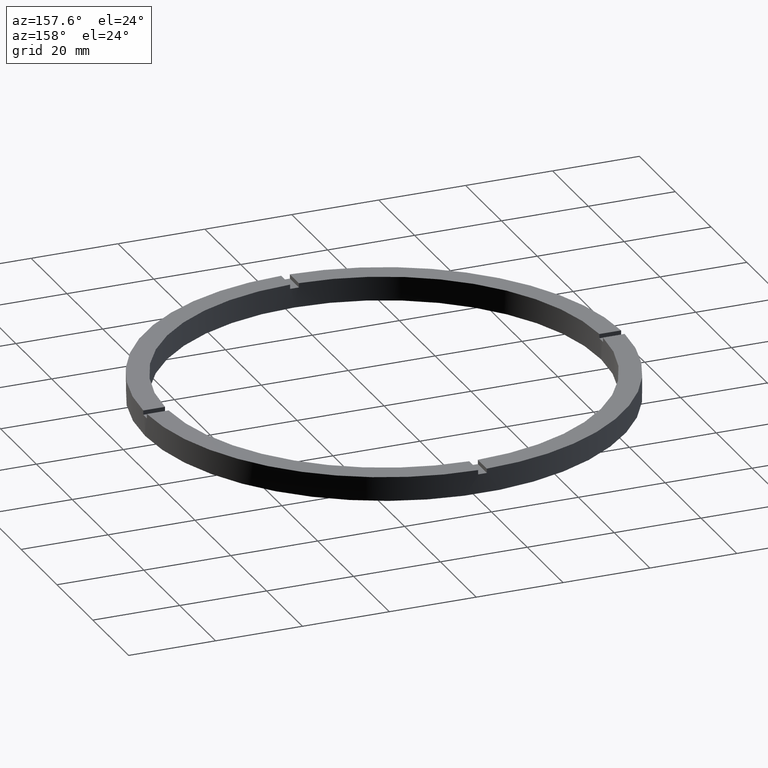
[diagram: clean part render]
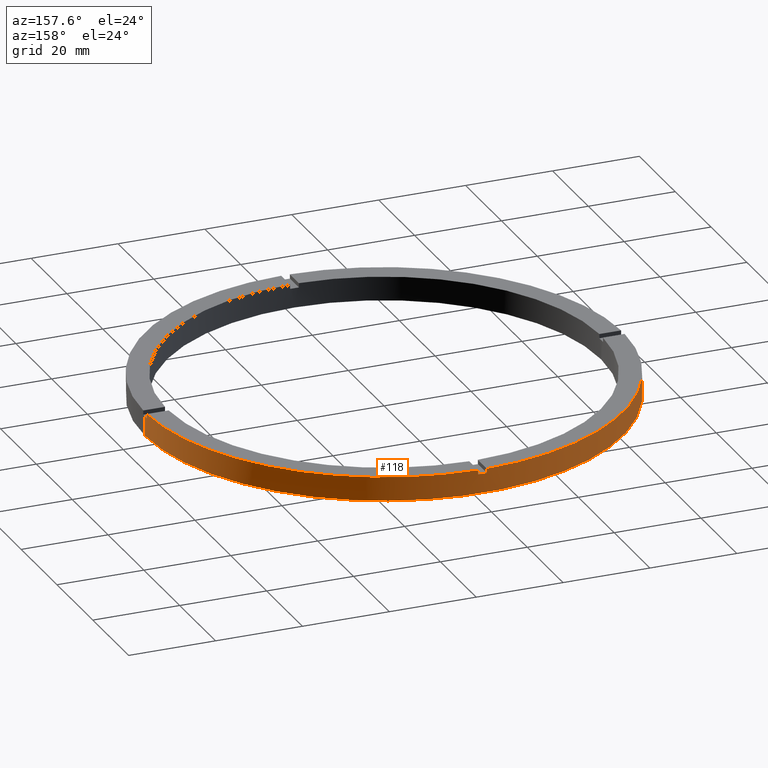
[diagram: same view with one face highlighted and labeled with its STEP entity id]
A machine part, auxiliary view. The second image highlights one B-rep face of the part: STEP entity #118.
In plain terms, the highlighted cylindrical surface (partial cylindrical patch) has radius 55 mm, axis along (-0, -0, -1).
Its self-contained STEP definition (entity closure, byte-faithful):
#1 = CARTESIAN_POINT ( 'NONE',  ( 0.9999999999999726885, 54.99090833947007440, 5.500000000000000000 ) ) ;
#3 = VECTOR ( 'NONE', #651, 1000.000000000000000 ) ;
#5 = EDGE_CURVE ( 'NONE', #661, #153, #187, .T. ) ;
#8 = LINE ( 'NONE', #555, #3 ) ;
#17 = DIRECTION ( 'NONE',  ( 0.000000000000000000, 0.000000000000000000, 1.000000000000000000 ) ) ;
#18 = CARTESIAN_POINT ( 'NONE',  ( 55.00000000000000000, 6.735557395310442615E-15, 5.500000000000000000 ) ) ;
#22 = EDGE_CURVE ( 'NONE', #711, #626, #473, .T. ) ;
#24 = DIRECTION ( 'NONE',  ( 1.000000000000000000, 0.000000000000000000, 0.000000000000000000 ) ) ;
#29 = CARTESIAN_POINT ( 'NONE',  ( 0.000000000000000000, 0.000000000000000000, 0.000000000000000000 ) ) ;
#34 = DIRECTION ( 'NONE',  ( 1.000000000000000000, 0.000000000000000000, 0.000000000000000000 ) ) ;
#45 = VERTEX_POINT ( 'NONE', #406 ) ;
#51 = VERTEX_POINT ( 'NONE', #1 ) ;
#53 = AXIS2_PLACEMENT_3D ( 'NONE', #130, #543, #266 ) ;
#65 = DIRECTION ( 'NONE',  ( 0.000000000000000000, 0.000000000000000000, 1.000000000000000000 ) ) ;
#68 = EDGE_CURVE ( 'NONE', #213, #51, #706, .T. ) ;
#73 = DIRECTION ( 'NONE',  ( -0.000000000000000000, -0.000000000000000000, -1.000000000000000000 ) ) ;
#88 = CARTESIAN_POINT ( 'NONE',  ( -54.99090833947007440, 0.9999999999999672484, 5.500000000000000000 ) ) ;
#93 = DIRECTION ( 'NONE',  ( -0.000000000000000000, -0.000000000000000000, -1.000000000000000000 ) ) ;
#104 = EDGE_CURVE ( 'NONE', #45, #408, #219, .T. ) ;
#107 = CARTESIAN_POINT ( 'NONE',  ( -1.000000000000027311, 54.99090833947007440, 5.500000000000000000 ) ) ;
#108 = ORIENTED_EDGE ( 'NONE', *, *, #148, .T. ) ;
#111 = EDGE_CURVE ( 'NONE', #442, #408, #716, .T. ) ;
#114 = ORIENTED_EDGE ( 'NONE', *, *, #600, .F. ) ;
#116 = VERTEX_POINT ( 'NONE', #158 ) ;
#118 = ADVANCED_FACE ( 'NONE', ( #720 ), #468, .T. ) ;
#130 = CARTESIAN_POINT ( 'NONE',  ( 0.000000000000000000, 0.000000000000000000, 4.500000000000000000 ) ) ;
#148 = EDGE_CURVE ( 'NONE', #442, #161, #727, .T. ) ;
#153 = VERTEX_POINT ( 'NONE', #366 ) ;
#158 = CARTESIAN_POINT ( 'NONE',  ( 0.9999999999999726885, 54.99090833947007440, 4.500000000000000000 ) ) ;
#161 = VERTEX_POINT ( 'NONE', #743 ) ;
#170 = CARTESIAN_POINT ( 'NONE',  ( 0.000000000000000000, 0.000000000000000000, 4.500000000000000000 ) ) ;
#182 = VECTOR ( 'NONE', #312, 1000.000000000000000 ) ;
#187 = LINE ( 'NONE', #599, #695 ) ;
#189 = CIRCLE ( 'NONE', #470, 55.00000000000000000 ) ;
#193 = CARTESIAN_POINT ( 'NONE',  ( -55.00000000000000000, 0.000000000000000000, 4.500000000000000000 ) ) ;
#198 = EDGE_CURVE ( 'NONE', #626, #153, #189, .T. ) ;
#213 = VERTEX_POINT ( 'NONE', #446 ) ;
#217 = VECTOR ( 'NONE', #571, 1000.000000000000000 ) ;
#219 = LINE ( 'NONE', #759, #463 ) ;
#220 = ORIENTED_EDGE ( 'NONE', *, *, #732, .F. ) ;
#221 = DIRECTION ( 'NONE',  ( -1.000000000000000000, 0.000000000000000000, 0.000000000000000000 ) ) ;
#256 = CIRCLE ( 'NONE', #260, 55.00000000000000000 ) ;
#257 = CIRCLE ( 'NONE', #593, 55.00000000000000000 ) ;
#260 = AXIS2_PLACEMENT_3D ( 'NONE', #642, #17, #498 ) ;
#266 = DIRECTION ( 'NONE',  ( 1.000000000000000000, 0.000000000000000000, 0.000000000000000000 ) ) ;
#274 = AXIS2_PLACEMENT_3D ( 'NONE', #531, #471, #34 ) ;
#312 = DIRECTION ( 'NONE',  ( -0.000000000000000000, -0.000000000000000000, -1.000000000000000000 ) ) ;
#341 = CARTESIAN_POINT ( 'NONE',  ( 0.000000000000000000, 0.000000000000000000, 5.500000000000000000 ) ) ;
#353 = EDGE_CURVE ( 'NONE', #116, #51, #770, .T. ) ;
#360 = DIRECTION ( 'NONE',  ( 0.000000000000000000, 0.000000000000000000, 1.000000000000000000 ) ) ;
#366 = CARTESIAN_POINT ( 'NONE',  ( -55.00000000000000000, 0.000000000000000000, 0.000000000000000000 ) ) ;
#367 = CARTESIAN_POINT ( 'NONE',  ( 55.00000000000000000, 6.735557395310442615E-15, 4.500000000000000000 ) ) ;
#369 = DIRECTION ( 'NONE',  ( 0.000000000000000000, 0.000000000000000000, 1.000000000000000000 ) ) ;
#370 = CARTESIAN_POINT ( 'NONE',  ( 54.99090833947008150, 0.9999999999998459010, 4.500000000000000000 ) ) ;
#376 = ORIENTED_EDGE ( 'NONE', *, *, #111, .F. ) ;
#381 = CARTESIAN_POINT ( 'NONE',  ( 0.9999999999999726885, 54.99090833947007440, 5.500000000000000000 ) ) ;
#384 = DIRECTION ( 'NONE',  ( 0.000000000000000000, 0.000000000000000000, 1.000000000000000000 ) ) ;
#386 = ORIENTED_EDGE ( 'NONE', *, *, #22, .T. ) ;
#390 = AXIS2_PLACEMENT_3D ( 'NONE', #341, #93, #221 ) ;
#391 = EDGE_LOOP ( 'NONE', ( #114, #386, #405, #475, #722, #652, #376, #108, #220, #394, #680, #395 ) ) ;
#392 = CARTESIAN_POINT ( 'NONE',  ( 0.000000000000000000, 0.000000000000000000, 5.500000000000000000 ) ) ;
#394 = ORIENTED_EDGE ( 'NONE', *, *, #353, .T. ) ;
#395 = ORIENTED_EDGE ( 'NONE', *, *, #678, .T. ) ;
#405 = ORIENTED_EDGE ( 'NONE', *, *, #198, .T. ) ;
#406 = CARTESIAN_POINT ( 'NONE',  ( -54.99090833947007440, 0.9999999999999672484, 4.500000000000000000 ) ) ;
#408 = VERTEX_POINT ( 'NONE', #88 ) ;
#442 = VERTEX_POINT ( 'NONE', #537 ) ;
#444 = DIRECTION ( 'NONE',  ( 1.000000000000000000, 0.000000000000000000, 0.000000000000000000 ) ) ;
#446 = CARTESIAN_POINT ( 'NONE',  ( 54.99090833947008150, 0.9999999999998459010, 5.500000000000000000 ) ) ;
#463 = VECTOR ( 'NONE', #694, 1000.000000000000000 ) ;
#468 = CYLINDRICAL_SURFACE ( 'NONE', #390, 55.00000000000000000 ) ;
#470 = AXIS2_PLACEMENT_3D ( 'NONE', #29, #369, #24 ) ;
#471 = DIRECTION ( 'NONE',  ( 0.000000000000000000, 0.000000000000000000, 1.000000000000000000 ) ) ;
#473 = LINE ( 'NONE', #18, #182 ) ;
#475 = ORIENTED_EDGE ( 'NONE', *, *, #5, .F. ) ;
#495 = VECTOR ( 'NONE', #360, 1000.000000000000000 ) ;
#498 = DIRECTION ( 'NONE',  ( 1.000000000000000000, 0.000000000000000000, 0.000000000000000000 ) ) ;
#523 = CIRCLE ( 'NONE', #53, 55.00000000000000000 ) ;
#531 = CARTESIAN_POINT ( 'NONE',  ( 0.000000000000000000, 0.000000000000000000, 5.500000000000000000 ) ) ;
#532 = CARTESIAN_POINT ( 'NONE',  ( 55.00000000000000000, 6.735557395310442615E-15, 0.000000000000000000 ) ) ;
#537 = CARTESIAN_POINT ( 'NONE',  ( -1.000000000000027311, 54.99090833947007440, 5.500000000000000000 ) ) ;
#543 = DIRECTION ( 'NONE',  ( 0.000000000000000000, -0.000000000000000000, 1.000000000000000000 ) ) ;
#548 = EDGE_CURVE ( 'NONE', #45, #661, #256, .T. ) ;
#555 = CARTESIAN_POINT ( 'NONE',  ( 54.99090833947008150, 0.9999999999998459010, 5.500000000000000000 ) ) ;
#571 = DIRECTION ( 'NONE',  ( -0.000000000000000000, -0.000000000000000000, -1.000000000000000000 ) ) ;
#593 = AXIS2_PLACEMENT_3D ( 'NONE', #170, #65, #621 ) ;
#599 = CARTESIAN_POINT ( 'NONE',  ( -55.00000000000000000, 0.000000000000000000, 5.500000000000000000 ) ) ;
#600 = EDGE_CURVE ( 'NONE', #711, #647, #257, .T. ) ;
#621 = DIRECTION ( 'NONE',  ( 1.000000000000000000, 0.000000000000000000, 0.000000000000000000 ) ) ;
#626 = VERTEX_POINT ( 'NONE', #532 ) ;
#642 = CARTESIAN_POINT ( 'NONE',  ( 0.000000000000000000, 0.000000000000000000, 4.500000000000000000 ) ) ;
#647 = VERTEX_POINT ( 'NONE', #370 ) ;
#651 = DIRECTION ( 'NONE',  ( -0.000000000000000000, -0.000000000000000000, -1.000000000000000000 ) ) ;
#652 = ORIENTED_EDGE ( 'NONE', *, *, #104, .T. ) ;
#661 = VERTEX_POINT ( 'NONE', #193 ) ;
#678 = EDGE_CURVE ( 'NONE', #213, #647, #8, .T. ) ;
#680 = ORIENTED_EDGE ( 'NONE', *, *, #68, .F. ) ;
#694 = DIRECTION ( 'NONE',  ( 0.000000000000000000, 0.000000000000000000, 1.000000000000000000 ) ) ;
#695 = VECTOR ( 'NONE', #73, 1000.000000000000000 ) ;
#706 = CIRCLE ( 'NONE', #713, 55.00000000000000000 ) ;
#711 = VERTEX_POINT ( 'NONE', #367 ) ;
#713 = AXIS2_PLACEMENT_3D ( 'NONE', #392, #384, #444 ) ;
#716 = CIRCLE ( 'NONE', #274, 55.00000000000000000 ) ;
#720 = FACE_OUTER_BOUND ( 'NONE', #391, .T. ) ;
#722 = ORIENTED_EDGE ( 'NONE', *, *, #548, .F. ) ;
#727 = LINE ( 'NONE', #107, #217 ) ;
#732 = EDGE_CURVE ( 'NONE', #116, #161, #523, .T. ) ;
#743 = CARTESIAN_POINT ( 'NONE',  ( -1.000000000000027311, 54.99090833947007440, 4.500000000000000000 ) ) ;
#759 = CARTESIAN_POINT ( 'NONE',  ( -54.99090833947007440, 0.9999999999999672484, 5.500000000000000000 ) ) ;
#770 = LINE ( 'NONE', #381, #495 ) ;